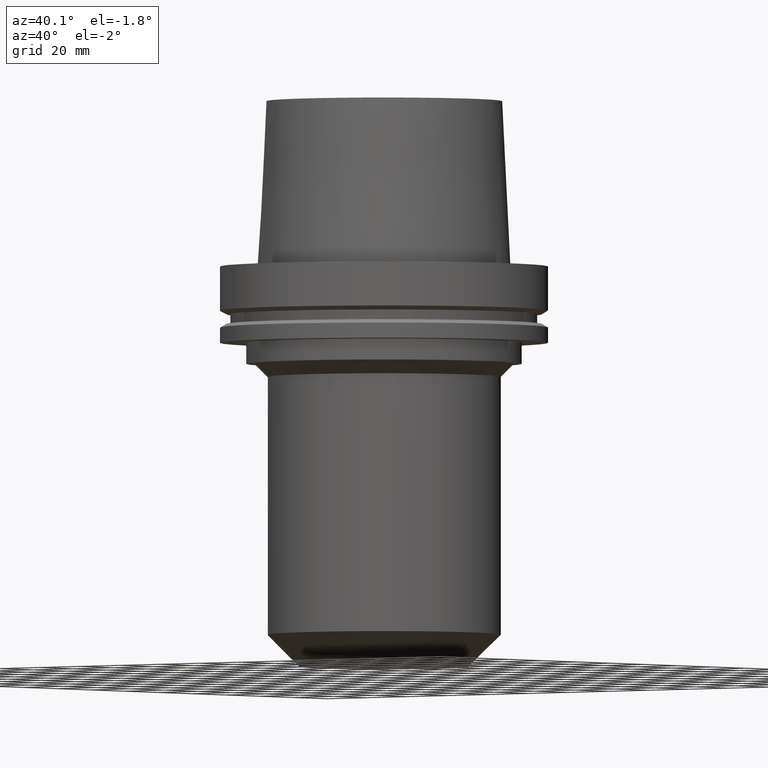
[diagram: clean part render]
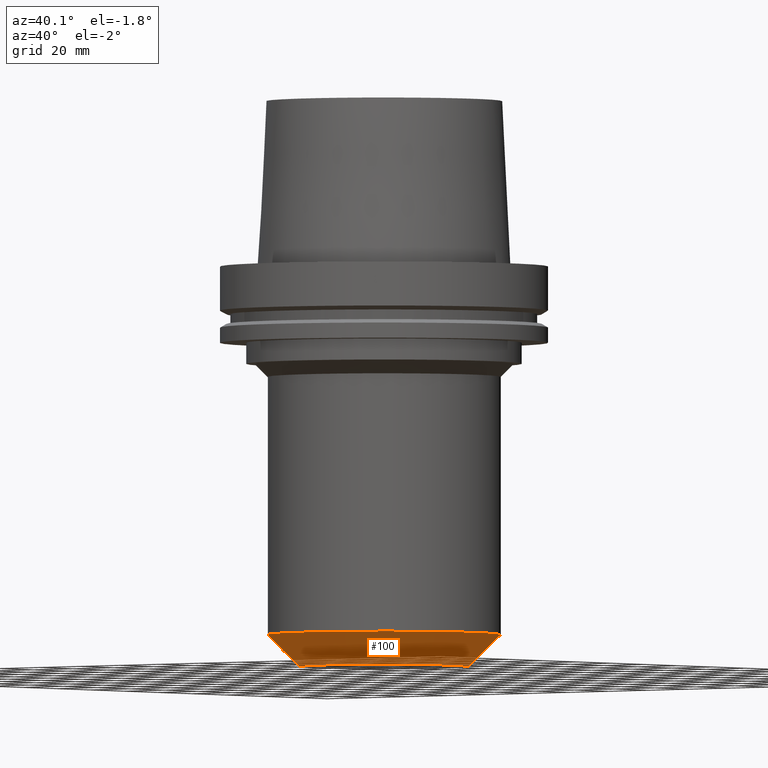
[diagram: same view with one face highlighted and labeled with its STEP entity id]
A machine part, auxiliary view. The second image highlights one B-rep face of the part: STEP entity #100.
In plain terms, the highlighted conical surface has half-angle 45 deg.
Its self-contained STEP definition (entity closure, byte-faithful):
#63=EDGE_CURVE('Unnamed[1]',#166,#166,#167,.T.);
#100=ADVANCED_FACE('Unnamed[1]',(#224,#225),#226,.T.);
#128=EDGE_CURVE('Unnamed[1]',#268,#268,#269,.T.);
#166=VERTEX_POINT('',#308);
#167=CIRCLE('',#309,32.2500000000003);
#224=FACE_BOUND('',#381,.T.);
#225=FACE_BOUND('',#382,.T.);
#226=CONICAL_SURFACE('',#383,38.3500000000003,0.785398163397445);
#268=VERTEX_POINT('',#436);
#269=CIRCLE('',#437,44.4500000000003);
#308=CARTESIAN_POINT('',(9.33180860950283E-015,32.2500000000004,-152.4));
#309=AXIS2_PLACEMENT_3D('',#471,#472,#473);
#381=EDGE_LOOP('',(#535));
#382=EDGE_LOOP('',(#536));
#383=AXIS2_PLACEMENT_3D('',#537,#538,#539);
#436=CARTESIAN_POINT('',(8.58477406202295E-015,44.4500000000003,-140.2));
#437=AXIS2_PLACEMENT_3D('',#586,#587,#588);
#471=CARTESIAN_POINT('',(9.33180860950283E-015,1.86636172190057E-014,-152.4));
#472=DIRECTION('',(6.12323399573676E-017,1.22464679914704E-016,-1.0));
#473=DIRECTION('',(-1.23259516440782E-032,1.0,1.22464679914704E-016));
#535=ORIENTED_EDGE('',*,*,#63,.F.);
#536=ORIENTED_EDGE('',*,*,#128,.T.);
#537=CARTESIAN_POINT('',(8.95829133576289E-015,1.79165826715258E-014,-146.3));
#538=DIRECTION('',(-6.12323399573677E-017,-1.22464679914735E-016,1.0));
#539=DIRECTION('',(-1.23259516440801E-032,1.0,1.22464679914735E-016));
#586=CARTESIAN_POINT('',(8.58477406202295E-015,1.71695481240459E-014,-140.2));
#587=DIRECTION('',(6.12323399573677E-017,1.22464679914757E-016,-1.0));
#588=DIRECTION('',(-1.23259516440815E-032,1.0,1.22464679914757E-016));